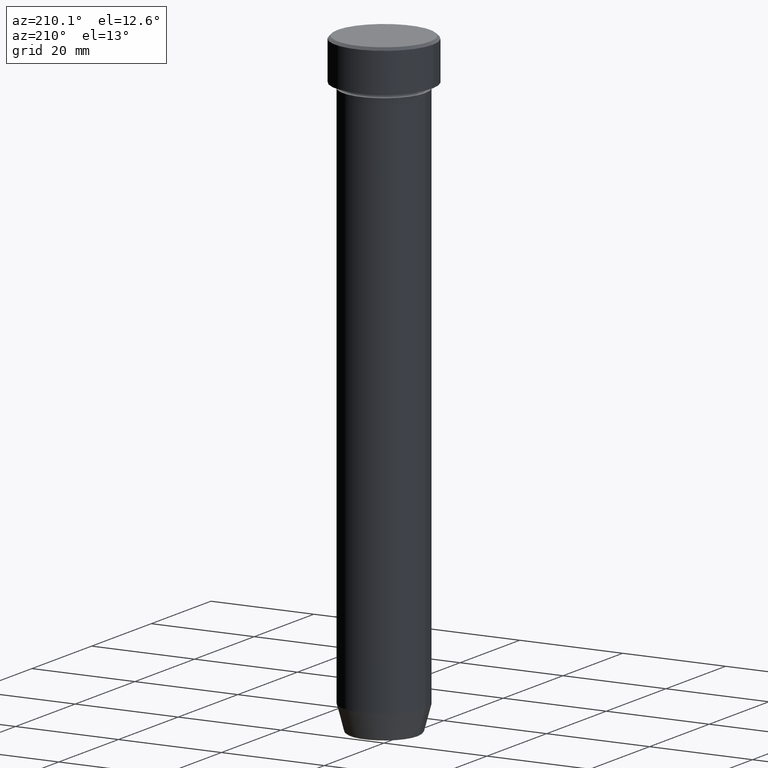
[diagram: clean part render]
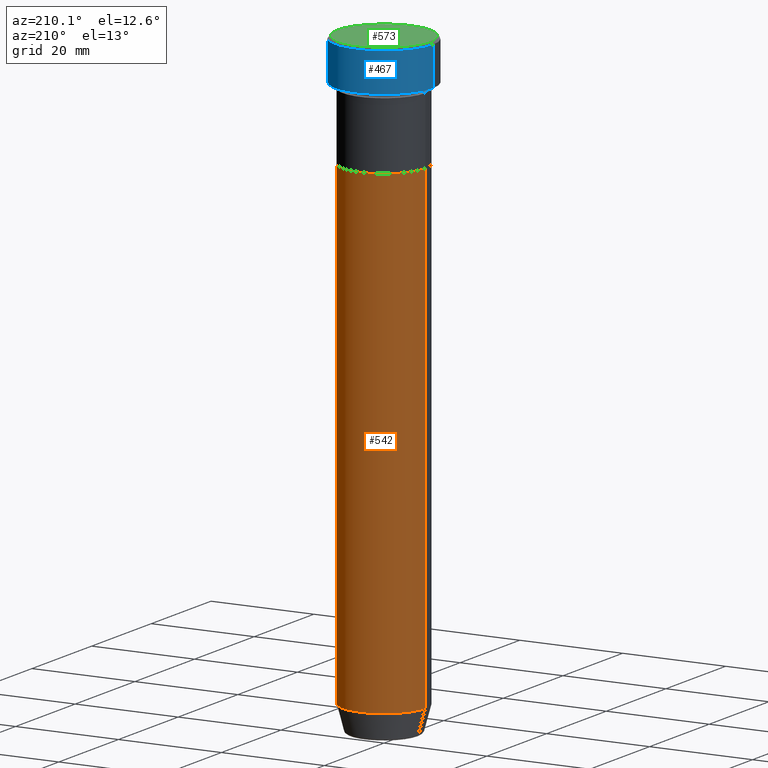
[diagram: same view with three faces highlighted in distinct colors, each labeled with its STEP entity id]
A machine part, auxiliary view with three faces highlighted in distinct colors.
Their STEP definitions:

[orange] entity #542 — the highlighted cylindrical surface (partial cylindrical patch) has radius 8 mm, axis along (-0, -0, 1).
#21 = ORIENTED_EDGE ( 'NONE', *, *, #439, .T. ) ;
#43 = EDGE_CURVE ( 'NONE', #417, #256, #357, .T. ) ;
#50 = AXIS2_PLACEMENT_3D ( 'NONE', #89, #451, #174 ) ;
#68 = CARTESIAN_POINT ( 'NONE',  ( 0.000000000000000000, 0.000000000000000000, 0.000000000000000000 ) ) ;
#72 = AXIS2_PLACEMENT_3D ( 'NONE', #68, #254, #75 ) ;
#75 = DIRECTION ( 'NONE',  ( 1.000000000000000000, 0.000000000000000000, 0.000000000000000000 ) ) ;
#79 = VECTOR ( 'NONE', #314, 1000.000000000000000 ) ;
#89 = CARTESIAN_POINT ( 'NONE',  ( 0.000000000000000000, 0.000000000000000000, -114.9999999999999858 ) ) ;
#92 = CARTESIAN_POINT ( 'NONE',  ( 0.000000000000000000, 0.000000000000000000, -22.00000000000000000 ) ) ;
#113 = EDGE_LOOP ( 'NONE', ( #277, #21, #315, #489 ) ) ;
#131 = AXIS2_PLACEMENT_3D ( 'NONE', #92, #587, #413 ) ;
#134 = CARTESIAN_POINT ( 'NONE',  ( 8.000000000000000000, 0.000000000000000000, -22.00000000000000000 ) ) ;
#149 = EDGE_CURVE ( 'NONE', #417, #196, #434, .T. ) ;
#153 = VECTOR ( 'NONE', #201, 1000.000000000000000 ) ;
#163 = CARTESIAN_POINT ( 'NONE',  ( -8.000000000000000000, 9.797174393178825657E-16, 0.000000000000000000 ) ) ;
#174 = DIRECTION ( 'NONE',  ( 1.000000000000000000, 0.000000000000000000, 0.000000000000000000 ) ) ;
#196 = VERTEX_POINT ( 'NONE', #272 ) ;
#201 = DIRECTION ( 'NONE',  ( -0.000000000000000000, -0.000000000000000000, 1.000000000000000000 ) ) ;
#202 = CARTESIAN_POINT ( 'NONE',  ( 8.000000000000000000, 0.000000000000000000, 0.000000000000000000 ) ) ;
#218 = EDGE_CURVE ( 'NONE', #256, #470, #534, .T. ) ;
#249 = CARTESIAN_POINT ( 'NONE',  ( -8.000000000000000000, 9.797174393178825657E-16, -22.00000000000000000 ) ) ;
#254 = DIRECTION ( 'NONE',  ( -0.000000000000000000, -0.000000000000000000, 1.000000000000000000 ) ) ;
#256 = VERTEX_POINT ( 'NONE', #134 ) ;
#272 = CARTESIAN_POINT ( 'NONE',  ( -8.000000000000000000, 9.797174393178825657E-16, -114.9999999999999858 ) ) ;
#277 = ORIENTED_EDGE ( 'NONE', *, *, #149, .T. ) ;
#303 = FACE_OUTER_BOUND ( 'NONE', #113, .T. ) ;
#314 = DIRECTION ( 'NONE',  ( -0.000000000000000000, -0.000000000000000000, 1.000000000000000000 ) ) ;
#315 = ORIENTED_EDGE ( 'NONE', *, *, #218, .F. ) ;
#357 = LINE ( 'NONE', #202, #79 ) ;
#413 = DIRECTION ( 'NONE',  ( 1.000000000000000000, 0.000000000000000000, 0.000000000000000000 ) ) ;
#417 = VERTEX_POINT ( 'NONE', #558 ) ;
#434 = CIRCLE ( 'NONE', #50, 8.000000000000000000 ) ;
#439 = EDGE_CURVE ( 'NONE', #196, #470, #481, .T. ) ;
#451 = DIRECTION ( 'NONE',  ( -0.000000000000000000, -0.000000000000000000, 1.000000000000000000 ) ) ;
#470 = VERTEX_POINT ( 'NONE', #249 ) ;
#481 = LINE ( 'NONE', #163, #153 ) ;
#489 = ORIENTED_EDGE ( 'NONE', *, *, #43, .F. ) ;
#526 = CYLINDRICAL_SURFACE ( 'NONE', #72, 8.000000000000000000 ) ;
#534 = CIRCLE ( 'NONE', #131, 8.000000000000000000 ) ;
#542 = ADVANCED_FACE ( 'NONE', ( #303 ), #526, .T. ) ;
#558 = CARTESIAN_POINT ( 'NONE',  ( 8.000000000000000000, 0.000000000000000000, -114.9999999999999858 ) ) ;
#587 = DIRECTION ( 'NONE',  ( -0.000000000000000000, -0.000000000000000000, 1.000000000000000000 ) ) ;

[blue] entity #467 — the highlighted cylindrical surface (partial cylindrical patch) has radius 9.5 mm, axis along (-0, -0, 1).
#3 = DIRECTION ( 'NONE',  ( -0.000000000000000000, -0.000000000000000000, 1.000000000000000000 ) ) ;
#17 = VERTEX_POINT ( 'NONE', #350 ) ;
#23 = DIRECTION ( 'NONE',  ( -0.000000000000000000, -0.000000000000000000, 1.000000000000000000 ) ) ;
#48 = LINE ( 'NONE', #199, #258 ) ;
#62 = FACE_OUTER_BOUND ( 'NONE', #78, .T. ) ;
#67 = DIRECTION ( 'NONE',  ( -0.000000000000000000, -0.000000000000000000, 1.000000000000000000 ) ) ;
#78 = EDGE_LOOP ( 'NONE', ( #567, #512, #227, #505 ) ) ;
#85 = EDGE_CURVE ( 'NONE', #455, #562, #588, .T. ) ;
#87 = AXIS2_PLACEMENT_3D ( 'NONE', #208, #67, #389 ) ;
#91 = VECTOR ( 'NONE', #221, 1000.000000000000000 ) ;
#95 = VERTEX_POINT ( 'NONE', #392 ) ;
#178 = CIRCLE ( 'NONE', #399, 9.500000000000000000 ) ;
#185 = EDGE_CURVE ( 'NONE', #455, #17, #503, .T. ) ;
#189 = DIRECTION ( 'NONE',  ( 1.000000000000000000, 0.000000000000000000, 0.000000000000000000 ) ) ;
#199 = CARTESIAN_POINT ( 'NONE',  ( -9.500000000000000000, 1.163414459189985485E-15, 0.000000000000000000 ) ) ;
#208 = CARTESIAN_POINT ( 'NONE',  ( 0.000000000000000000, 0.000000000000000000, -8.000000000000000000 ) ) ;
#210 = DIRECTION ( 'NONE',  ( 1.000000000000000000, 0.000000000000000000, 0.000000000000000000 ) ) ;
#221 = DIRECTION ( 'NONE',  ( -0.000000000000000000, -0.000000000000000000, 1.000000000000000000 ) ) ;
#227 = ORIENTED_EDGE ( 'NONE', *, *, #323, .T. ) ;
#251 = CYLINDRICAL_SURFACE ( 'NONE', #581, 9.500000000000000000 ) ;
#258 = VECTOR ( 'NONE', #3, 1000.000000000000000 ) ;
#294 = CARTESIAN_POINT ( 'NONE',  ( 0.000000000000000000, 0.000000000000000000, -0.4999999999999968914 ) ) ;
#311 = CARTESIAN_POINT ( 'NONE',  ( 9.500000000000000000, 0.000000000000000000, -8.000000000000000000 ) ) ;
#323 = EDGE_CURVE ( 'NONE', #95, #17, #178, .T. ) ;
#326 = CARTESIAN_POINT ( 'NONE',  ( 9.500000000000000000, 0.000000000000000000, 0.000000000000000000 ) ) ;
#350 = CARTESIAN_POINT ( 'NONE',  ( 9.500000000000000000, 0.000000000000000000, -0.4999999999999968914 ) ) ;
#364 = EDGE_CURVE ( 'NONE', #562, #95, #48, .T. ) ;
#389 = DIRECTION ( 'NONE',  ( 1.000000000000000000, 0.000000000000000000, 0.000000000000000000 ) ) ;
#392 = CARTESIAN_POINT ( 'NONE',  ( -9.500000000000000000, 1.163414459189985485E-15, -0.4999999999999968914 ) ) ;
#399 = AXIS2_PLACEMENT_3D ( 'NONE', #294, #518, #189 ) ;
#431 = CARTESIAN_POINT ( 'NONE',  ( 0.000000000000000000, 0.000000000000000000, 0.000000000000000000 ) ) ;
#437 = CARTESIAN_POINT ( 'NONE',  ( -9.500000000000000000, 1.163414459189985485E-15, -8.000000000000000000 ) ) ;
#455 = VERTEX_POINT ( 'NONE', #311 ) ;
#467 = ADVANCED_FACE ( 'NONE', ( #62 ), #251, .T. ) ;
#503 = LINE ( 'NONE', #326, #91 ) ;
#505 = ORIENTED_EDGE ( 'NONE', *, *, #185, .F. ) ;
#512 = ORIENTED_EDGE ( 'NONE', *, *, #364, .T. ) ;
#518 = DIRECTION ( 'NONE',  ( 0.000000000000000000, 0.000000000000000000, -1.000000000000000000 ) ) ;
#562 = VERTEX_POINT ( 'NONE', #437 ) ;
#567 = ORIENTED_EDGE ( 'NONE', *, *, #85, .T. ) ;
#581 = AXIS2_PLACEMENT_3D ( 'NONE', #431, #23, #210 ) ;
#588 = CIRCLE ( 'NONE', #87, 9.500000000000000000 ) ;

[green] entity #573 — the highlighted planar face has unit normal (0, -0, 1).
#6 = DIRECTION ( 'NONE',  ( 1.000000000000000000, 0.000000000000000000, 0.000000000000000000 ) ) ;
#28 = VERTEX_POINT ( 'NONE', #577 ) ;
#110 = AXIS2_PLACEMENT_3D ( 'NONE', #339, #422, #377 ) ;
#120 = AXIS2_PLACEMENT_3D ( 'NONE', #476, #366, #499 ) ;
#237 = EDGE_LOOP ( 'NONE', ( #262, #243 ) ) ;
#243 = ORIENTED_EDGE ( 'NONE', *, *, #421, .T. ) ;
#262 = ORIENTED_EDGE ( 'NONE', *, *, #296, .T. ) ;
#296 = EDGE_CURVE ( 'NONE', #28, #538, #495, .T. ) ;
#297 = PLANE ( 'NONE',  #120 ) ;
#339 = CARTESIAN_POINT ( 'NONE',  ( 0.000000000000000000, 0.000000000000000000, 0.000000000000000000 ) ) ;
#366 = DIRECTION ( 'NONE',  ( 0.000000000000000000, -0.000000000000000000, 1.000000000000000000 ) ) ;
#377 = DIRECTION ( 'NONE',  ( 1.000000000000000000, 0.000000000000000000, 0.000000000000000000 ) ) ;
#419 = DIRECTION ( 'NONE',  ( -0.000000000000000000, -0.000000000000000000, 1.000000000000000000 ) ) ;
#421 = EDGE_CURVE ( 'NONE', #538, #28, #536, .T. ) ;
#422 = DIRECTION ( 'NONE',  ( -0.000000000000000000, -0.000000000000000000, 1.000000000000000000 ) ) ;
#466 = CARTESIAN_POINT ( 'NONE',  ( 0.000000000000000000, 0.000000000000000000, 0.000000000000000000 ) ) ;
#476 = CARTESIAN_POINT ( 'NONE',  ( 0.000000000000000000, 0.000000000000000000, 0.000000000000000000 ) ) ;
#495 = CIRCLE ( 'NONE', #110, 9.000000000000001776 ) ;
#496 = AXIS2_PLACEMENT_3D ( 'NONE', #466, #419, #6 ) ;
#499 = DIRECTION ( 'NONE',  ( 1.000000000000000000, 0.000000000000000000, 0.000000000000000000 ) ) ;
#536 = CIRCLE ( 'NONE', #496, 9.000000000000001776 ) ;
#538 = VERTEX_POINT ( 'NONE', #571 ) ;
#540 = FACE_OUTER_BOUND ( 'NONE', #237, .T. ) ;
#571 = CARTESIAN_POINT ( 'NONE',  ( 9.000000000000001776, 1.132798289211301698E-15, 0.000000000000000000 ) ) ;
#573 = ADVANCED_FACE ( 'NONE', ( #540 ), #297, .T. ) ;
#577 = CARTESIAN_POINT ( 'NONE',  ( -9.000000000000001776, 0.000000000000000000, 0.000000000000000000 ) ) ;